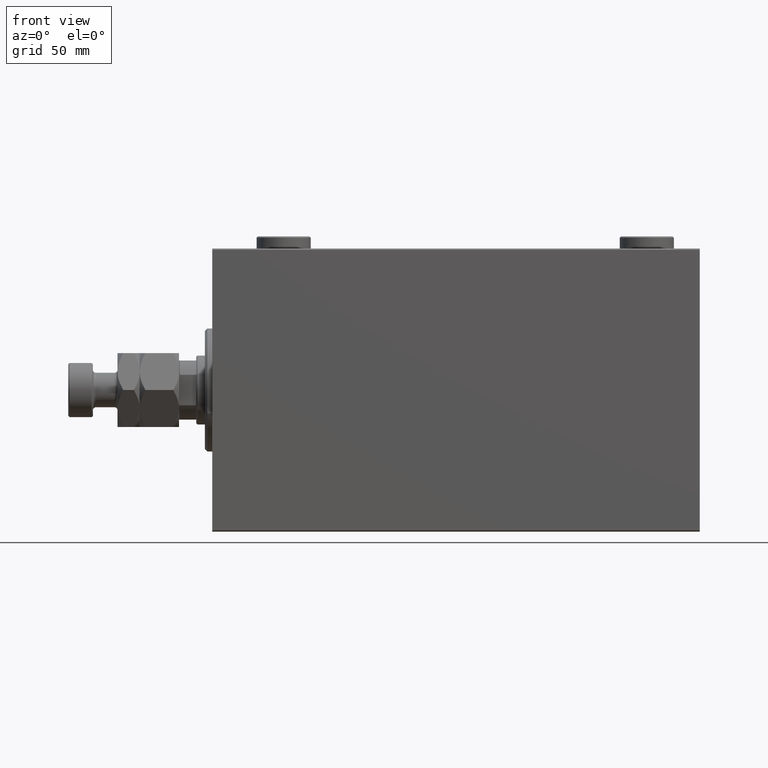
[diagram: clean part render]
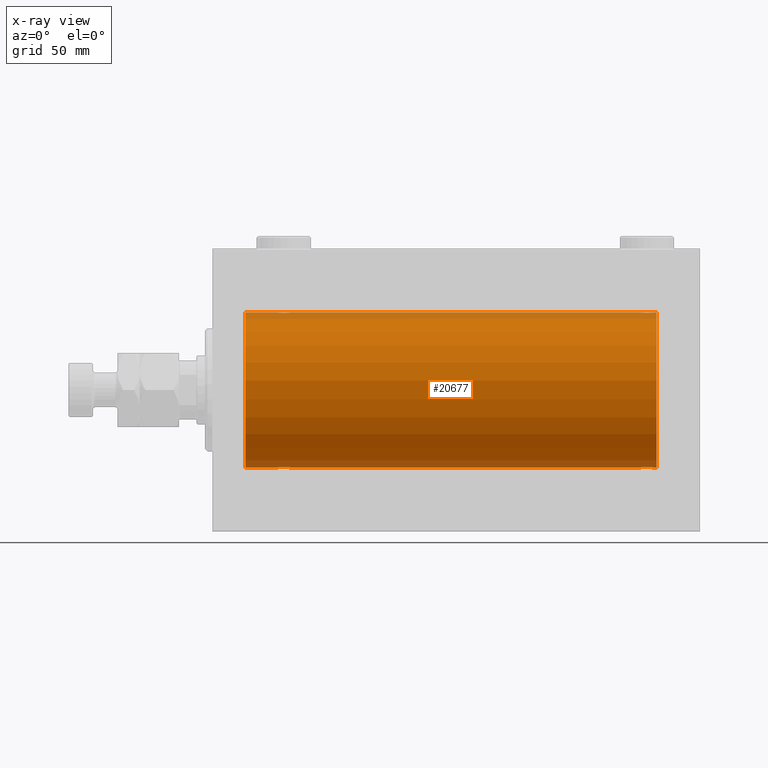
[diagram: x-ray — body ghosted, one internal face saturated and labeled with its STEP entity id]
A machine part, front view, then the same camera in x-ray: the body is ghosted and one INTERNAL B-rep face — a face not visible from any outside direction — is saturated and labeled: STEP entity #20677.
In plain terms, the highlighted cylindrical surface (partial cylindrical patch) has radius 31.5 mm, axis along (-1, -0, -0).
Its self-contained STEP definition (entity closure, byte-faithful):
#339 = CARTESIAN_POINT ( 'NONE',  ( 173.5000000000000568, -0.1958045626907475856, 31.50000000000000000 ) ) ;
#662 = CARTESIAN_POINT ( 'NONE',  ( 173.5000000000000000, -2.045720367747829303E-14, -31.50000000000000000 ) ) ;
#862 = CARTESIAN_POINT ( 'NONE',  ( 28.60465888999904749, -2.980257240990054513, 31.35872356503797320 ) ) ;
#952 = AXIS2_PLACEMENT_3D ( 'NONE', #30980, #45726, #34297 ) ;
#1020 = CARTESIAN_POINT ( 'NONE',  ( 180.5000000000000000, 0.000000000000000000, 31.50000000000000000 ) ) ;
#1269 = CARTESIAN_POINT ( 'NONE',  ( 174.9954371499300407, -2.602826974226394086, 31.39247100434485560 ) ) ;
#1308 = LINE ( 'NONE', #19824, #4145 ) ;
#1743 = DIRECTION ( 'NONE',  ( 0.000000000000000000, 0.000000000000000000, 1.000000000000000000 ) ) ;
#1803 = CARTESIAN_POINT ( 'NONE',  ( 29.39114547339941552, -2.980809450819701834, 31.35867074198615967 ) ) ;
#2640 = CARTESIAN_POINT ( 'NONE',  ( 27.67134585312494011, -2.696917666262907520, -31.38442820068732786 ) ) ;
#2702 = VECTOR ( 'NONE', #39648, 1000.000000000000000 ) ;
#2802 = VERTEX_POINT ( 'NONE', #41108 ) ;
#3082 = CARTESIAN_POINT ( 'NONE',  ( 177.4694445565852732, -2.845838211243336691, -31.37127560316186603 ) ) ;
#3305 = CARTESIAN_POINT ( 'NONE',  ( 174.6729577462972998, -2.387531469909784931, -31.40957782495775419 ) ) ;
#3336 = CARTESIAN_POINT ( 'NONE',  ( 30.33239958099164824, -2.695056442718529954, -31.38458855656185875 ) ) ;
#3576 = CARTESIAN_POINT ( 'NONE',  ( 31.60417781274729165, -1.502389880412996259, -31.46458023642406587 ) ) ;
#3905 = CARTESIAN_POINT ( 'NONE',  ( 177.4651572981064476, -2.847307171789025926, 31.37114183851420179 ) ) ;
#4145 = VECTOR ( 'NONE', #9616, 1000.000000000000000 ) ;
#4243 = CARTESIAN_POINT ( 'NONE',  ( 26.00000000000000355, -2.117263226567934635E-23, 31.50000000000000000 ) ) ;
#4375 = CARTESIAN_POINT ( 'NONE',  ( 179.5000000000000000, 4.699731104275013306E-15, 31.50000000000000000 ) ) ;
#4603 = CARTESIAN_POINT ( 'NONE',  ( 175.7211808735768273, -2.903733559410683895, 31.36590199989304395 ) ) ;
#4830 = CARTESIAN_POINT ( 'NONE',  ( 176.8911454733994049, -2.980809450819698281, 31.35867074198615967 ) ) ;
#4881 = B_SPLINE_CURVE_WITH_KNOTS ( 'NONE', 3,
 ( #29602, #43895, #11314, #25329, #37192, #11537, #18909, #33407, #39841, #11772, #29821, #40305, #19131, #14425, #7756, #862, #44343, #7302, #1803, #33871, #31029, #15572, #41241, #37422, #37670, #5133, #34341, #45544, #19612, #34106, #5603, #23166 ),
 .UNSPECIFIED., .F., .F.,
 ( 4, 2, 2, 2, 2, 2, 2, 2, 2, 2, 2, 2, 2, 2, 2, 4 ),
 ( 0.009384682587134639611, 0.009971088165454038837, 0.01055749374377343980, 0.01114389932209284076, 0.01173030490041223999, 0.01231671047873163921, 0.01290311605705104017, 0.01348952163537044113, 0.01407592721368984036, 0.01466233279200923958, 0.01524873837032864055, 0.01583514394864804151, 0.01642154952696744247, 0.01700795510528683996, 0.01759436068360624092, 0.01876717184024503243 ),
 .UNSPECIFIED. ) ;
#5133 = CARTESIAN_POINT ( 'NONE',  ( 31.25824501903266039, -1.984587626072074285, 31.43772577203672469 ) ) ;
#5603 = CARTESIAN_POINT ( 'NONE',  ( 32.00000000000001421, -0.3965830985361748495, 31.50000000000001421 ) ) ;
#5781 = CARTESIAN_POINT ( 'NONE',  ( 180.5000000000000000, 0.000000000000000000, 0.000000000000000000 ) ) ;
#6102 = CARTESIAN_POINT ( 'NONE',  ( 180.5000000000000000, 3.857637417314162689E-15, -31.50000000000000000 ) ) ;
#6396 = CARTESIAN_POINT ( 'NONE',  ( 177.8323995809916767, -2.695056442718533951, -31.38458855656186230 ) ) ;
#6430 = CARTESIAN_POINT ( 'NONE',  ( 26.30470357640989576, -1.331741824817665343, -31.47235367475392920 ) ) ;
#6638 = CARTESIAN_POINT ( 'NONE',  ( 174.9990184370385293, -2.604888532024801417, -31.39229907792057972 ) ) ;
#6874 = CARTESIAN_POINT ( 'NONE',  ( 176.8953411100009419, -2.980257240990060730, -31.35872356503797320 ) ) ;
#6905 = CARTESIAN_POINT ( 'NONE',  ( 31.26095462456130747, -1.981494824113326114, -31.43792153503156683 ) ) ;
#7302 = CARTESIAN_POINT ( 'NONE',  ( 29.19582294439440417, -3.000152387858486147, 31.35680286115499626 ) ) ;
#7330 = CARTESIAN_POINT ( 'NONE',  ( 178.4846035992465829, -2.258226318633799412, -31.41925597582826413 ) ) ;
#7509 = LINE ( 'NONE', #36466, #39357 ) ;
#7702 = CARTESIAN_POINT ( 'NONE',  ( 177.2746909443437175, -2.904836261170101519, 31.36579955910872286 ) ) ;
#7756 = CARTESIAN_POINT ( 'NONE',  ( 28.22118087357680238, -2.903733559410683895, 31.36590199989303684 ) ) ;
#7930 = CARTESIAN_POINT ( 'NONE',  ( 176.6958229443943935, -3.000152387858483927, 31.35680286115499626 ) ) ;
#8049 = ORIENTED_EDGE ( 'NONE', *, *, #29781, .T. ) ;
#8529 = EDGE_CURVE ( 'NONE', #28769, #45951, #31562, .T. ) ;
#8873 = CYLINDRICAL_SURFACE ( 'NONE', #16352, 31.50000000000000000 ) ;
#9616 = DIRECTION ( 'NONE',  ( -1.000000000000000000, -0.000000000000000000, -0.000000000000000000 ) ) ;
#9752 = CARTESIAN_POINT ( 'NONE',  ( 31.90419450738055218, -0.7775502215293819130, -31.49099686045559565 ) ) ;
#9847 = B_SPLINE_CURVE_WITH_KNOTS ( 'NONE', 3,
 ( #40476, #339, #44528, #23101, #40952, #19074, #15283, #25739, #33117, #15061, #29764, #1269, #15755, #29547, #4603, #18855, #11480, #7930, #4830, #7702, #3905, #11256, #44283, #19303, #30242, #44761, #22166, #22404, #11712, #36905, #18382, #4375 ),
 .UNSPECIFIED., .F., .F.,
 ( 4, 2, 2, 2, 2, 2, 2, 2, 2, 2, 2, 2, 2, 2, 2, 4 ),
 ( 0.009384682587134643081, 0.009971088165454042307, 0.01055749374377344327, 0.01114389932209284423, 0.01173030490041224345, 0.01231671047873164268, 0.01290311605705104364, 0.01348952163537044460, 0.01407592721368984383, 0.01466233279200924305, 0.01524873837032864402, 0.01583514394864804498, 0.01642154952696744594, 0.01700795510528684690, 0.01759436068360624439, 0.01876717184024504284 ),
 .UNSPECIFIED. ) ;
#9959 = LINE ( 'NONE', #24437, #2702 ) ;
#9983 = CARTESIAN_POINT ( 'NONE',  ( 32.00000000000000000, 3.857637396137448068E-15, -31.50000000000000000 ) ) ;
#10684 = CARTESIAN_POINT ( 'NONE',  ( 29.96944455658523054, -2.845838211243329585, -31.37127560316186603 ) ) ;
#10755 = EDGE_CURVE ( 'NONE', #26371, #16400, #21439, .T. ) ;
#11253 = ORIENTED_EDGE ( 'NONE', *, *, #44773, .T. ) ;
#11256 = CARTESIAN_POINT ( 'NONE',  ( 177.8286541468750670, -2.696917666262893309, 31.38442820068731365 ) ) ;
#11280 = VERTEX_POINT ( 'NONE', #32681 ) ;
#11314 = CARTESIAN_POINT ( 'NONE',  ( 26.01898490608483527, -0.3904857149112033743, 31.49817436802766935 ) ) ;
#11480 = CARTESIAN_POINT ( 'NONE',  ( 176.2995354102590113, -2.999845816735293713, 31.35683219171744796 ) ) ;
#11537 = CARTESIAN_POINT ( 'NONE',  ( 26.30285761163300151, -1.328004386210305698, 31.47251238182140298 ) ) ;
#11712 = CARTESIAN_POINT ( 'NONE',  ( 179.1952964235900652, -1.331741824817656683, 31.47235367475393630 ) ) ;
#11772 = CARTESIAN_POINT ( 'NONE',  ( 27.01539640075335669, -2.258226318633785201, 31.41925597582825702 ) ) ;
#13312 = CARTESIAN_POINT ( 'NONE',  ( 28.80417705560560648, -3.000152387858484371, -31.35680286115500337 ) ) ;
#13521 = CARTESIAN_POINT ( 'NONE',  ( 176.7004645897410171, -2.999845816735304815, -31.35683219171744796 ) ) ;
#13555 = CARTESIAN_POINT ( 'NONE',  ( 27.01856537126958813, -2.261012035264781783, -31.41905495618428645 ) ) ;
#13753 = CARTESIAN_POINT ( 'NONE',  ( 175.7253090556562540, -2.904836261170120171, -31.36579955910872286 ) ) ;
#13989 = CARTESIAN_POINT ( 'NONE',  ( 174.2417549809673005, -1.984587626072083388, -31.43772577203671048 ) ) ;
#14425 = CARTESIAN_POINT ( 'NONE',  ( 28.03055544341478722, -2.845838211243333138, 31.37127560316186603 ) ) ;
#14905 = ORIENTED_EDGE ( 'NONE', *, *, #20474, .F. ) ;
#15061 = CARTESIAN_POINT ( 'NONE',  ( 174.5153964007533602, -2.258226318633788754, 31.41925597582826413 ) ) ;
#15065 = LINE ( 'NONE', #35757, #27333 ) ;
#15283 = CARTESIAN_POINT ( 'NONE',  ( 173.8958221872526906, -1.502389880412993595, 31.46458023642405877 ) ) ;
#15572 = CARTESIAN_POINT ( 'NONE',  ( 30.32865414687508832, -2.696917666262907520, 31.38442820068731365 ) ) ;
#15609 = ORIENTED_EDGE ( 'NONE', *, *, #46080, .F. ) ;
#15755 = CARTESIAN_POINT ( 'NONE',  ( 175.1676004190082949, -2.695056442718522849, 31.38458855656185165 ) ) ;
#16276 = CARTESIAN_POINT ( 'NONE',  ( 179.5000000000000000, 3.857637396132714903E-15, -31.50000000000000000 ) ) ;
#16352 = AXIS2_PLACEMENT_3D ( 'NONE', #5781, #23344, #1743 ) ;
#16400 = VERTEX_POINT ( 'NONE', #23576 ) ;
#16601 = CARTESIAN_POINT ( 'NONE',  ( 173.5000000000000000, -2.118130973563677748E-23, 31.50000000000000000 ) ) ;
#16828 = CARTESIAN_POINT ( 'NONE',  ( 180.5000000000000000, 3.857637417314162689E-15, -31.50000000000000000 ) ) ;
#16979 = VERTEX_POINT ( 'NONE', #4243 ) ;
#17688 = DIRECTION ( 'NONE',  ( -1.000000000000000000, 0.000000000000000000, 0.000000000000000000 ) ) ;
#18113 = EDGE_CURVE ( 'NONE', #16979, #2802, #4881, .T. ) ;
#18150 = B_SPLINE_CURVE_WITH_KNOTS ( 'NONE', 3,
 ( #21116, #47033, #25360, #32049, #28934, #46560, #39873, #31582, #39175, #7330, #24431, #46098, #6396, #3082, #20878, #6874, #13521, #43227, #28003, #13753, #28230, #42747, #6638, #3305, #21344, #13989, #42992, #35833, #32284, #25135, #39642, #662 ),
 .UNSPECIFIED., .F., .F.,
 ( 4, 2, 2, 2, 2, 2, 2, 2, 2, 2, 2, 2, 2, 2, 2, 4 ),
 ( 0.009384682587134632673, 0.009971088165454031899, 0.01055749374377343112, 0.01114389932209283035, 0.01173030490041223131, 0.01231671047873163054, 0.01290311605705102976, 0.01348952163537043072, 0.01407592721368982822, 0.01466233279200922918, 0.01524873837032862840, 0.01583514394864802763, 0.01642154952696742512, 0.01700795510528682608, 0.01759436068360622357, 0.01876717184024502549 ),
 .UNSPECIFIED. ) ;
#18382 = CARTESIAN_POINT ( 'NONE',  ( 179.5000000000000000, -0.3965830985361761263, 31.50000000000000000 ) ) ;
#18519 = EDGE_CURVE ( 'NONE', #16979, #16400, #1308, .T. ) ;
#18855 = CARTESIAN_POINT ( 'NONE',  ( 176.1046588899990297, -2.980257240990053624, 31.35872356503797320 ) ) ;
#18909 = CARTESIAN_POINT ( 'NONE',  ( 26.39582218725271900, -1.502389880413001144, 31.46458023642405166 ) ) ;
#19074 = CARTESIAN_POINT ( 'NONE',  ( 173.8028576116330726, -1.328004386210311472, 31.47251238182141719 ) ) ;
#19131 = CARTESIAN_POINT ( 'NONE',  ( 27.66760041900836953, -2.695056442718533507, 31.38458855656185875 ) ) ;
#19303 = CARTESIAN_POINT ( 'NONE',  ( 178.3270422537026718, -2.387531469909772941, 31.40957782495776840 ) ) ;
#19612 = CARTESIAN_POINT ( 'NONE',  ( 31.69529642359010424, -1.331741824817659348, 31.47235367475393630 ) ) ;
#19824 = CARTESIAN_POINT ( 'NONE',  ( 180.5000000000000000, 0.000000000000000000, 31.50000000000000000 ) ) ;
#20138 = VECTOR ( 'NONE', #44280, 1000.000000000000000 ) ;
#20264 = FACE_OUTER_BOUND ( 'NONE', #24991, .T. ) ;
#20474 = EDGE_CURVE ( 'NONE', #28769, #11280, #25392, .T. ) ;
#20547 = EDGE_CURVE ( 'NONE', #27535, #22372, #9847, .T. ) ;
#20667 = CARTESIAN_POINT ( 'NONE',  ( 28.22530905565627179, -2.904836261170103739, -31.36579955910872286 ) ) ;
#20677 = ADVANCED_FACE ( 'NONE', ( #20264 ), #8873, .F. ) ;
#20878 = CARTESIAN_POINT ( 'NONE',  ( 177.2788191264232012, -2.903733559410687004, -31.36590199989303684 ) ) ;
#20911 = CARTESIAN_POINT ( 'NONE',  ( 26.07979337049960478, -0.7905881588836203289, -31.49214662150069088 ) ) ;
#21010 = EDGE_CURVE ( 'NONE', #21600, #23703, #27983, .T. ) ;
#21116 = CARTESIAN_POINT ( 'NONE',  ( 179.5000000000000000, 3.857637396132714903E-15, -31.50000000000000000 ) ) ;
#21147 = CARTESIAN_POINT ( 'NONE',  ( 30.50456285006998769, -2.602826974226392309, -31.39247100434485560 ) ) ;
#21149 = ORIENTED_EDGE ( 'NONE', *, *, #37435, .F. ) ;
#21344 = CARTESIAN_POINT ( 'NONE',  ( 174.5185653712695455, -2.261012035264789777, -31.41905495618427224 ) ) ;
#21374 = CARTESIAN_POINT ( 'NONE',  ( 32.00000000000001421, -0.1958045626907418957, -31.50000000000000711 ) ) ;
#21439 = CIRCLE ( 'NONE', #952, 31.50000000000000000 ) ;
#21600 = VERTEX_POINT ( 'NONE', #40669 ) ;
#22166 = CARTESIAN_POINT ( 'NONE',  ( 178.8824687226663173, -1.833765390051030009, 31.44700610425690712 ) ) ;
#22372 = VERTEX_POINT ( 'NONE', #22828 ) ;
#22404 = CARTESIAN_POINT ( 'NONE',  ( 179.1019214043915326, -1.506272792558311702, 31.46439306106696421 ) ) ;
#22828 = CARTESIAN_POINT ( 'NONE',  ( 179.5000000000000000, 4.699731104275013306E-15, 31.50000000000000000 ) ) ;
#23101 = CARTESIAN_POINT ( 'NONE',  ( 173.5958054926194336, -0.7775502215293850217, 31.49099686045560276 ) ) ;
#23166 = CARTESIAN_POINT ( 'NONE',  ( 32.00000000000000000, -3.906065418435112189E-16, 31.50000000000000000 ) ) ;
#23344 = DIRECTION ( 'NONE',  ( -1.000000000000000000, -0.000000000000000000, -0.000000000000000000 ) ) ;
#23576 = CARTESIAN_POINT ( 'NONE',  ( 13.50000000000001243, 0.000000000000000000, 31.50000000000000000 ) ) ;
#23678 = ORIENTED_EDGE ( 'NONE', *, *, #18113, .T. ) ;
#23703 = VERTEX_POINT ( 'NONE', #27600 ) ;
#24234 = CARTESIAN_POINT ( 'NONE',  ( 30.83043691487002746, -2.384935707362433988, -31.40977595730572958 ) ) ;
#24431 = CARTESIAN_POINT ( 'NONE',  ( 178.3304369148700061, -2.384935707362425550, -31.40977595730572247 ) ) ;
#24437 = CARTESIAN_POINT ( 'NONE',  ( 180.5000000000000000, 3.857637417314162689E-15, -31.50000000000000000 ) ) ;
#24462 = CARTESIAN_POINT ( 'NONE',  ( 31.84660463742499559, -0.9669616078781945179, -31.48567319468626735 ) ) ;
#24941 = CARTESIAN_POINT ( 'NONE',  ( 31.69714238836700915, -1.328004386210301480, -31.47251238182141009 ) ) ;
#24991 = EDGE_LOOP ( 'NONE', ( #14905, #44047, #34095, #8049, #39864, #11253, #25050, #28847, #23678, #15609, #38953, #21149 ) ) ;
#25050 = ORIENTED_EDGE ( 'NONE', *, *, #10755, .T. ) ;
#25135 = CARTESIAN_POINT ( 'NONE',  ( 173.5797933704995728, -0.7905881588836281004, -31.49214662150069088 ) ) ;
#25329 = CARTESIAN_POINT ( 'NONE',  ( 26.09580549261944427, -0.7775502215293862429, 31.49099686045558144 ) ) ;
#25360 = CARTESIAN_POINT ( 'NONE',  ( 179.4810150939152038, -0.3904857149112007653, -31.49817436802767290 ) ) ;
#25392 = CIRCLE ( 'NONE', #37529, 31.50000000000000000 ) ;
#25542 = DIRECTION ( 'NONE',  ( -1.000000000000000000, -0.000000000000000000, -0.000000000000000000 ) ) ;
#25735 = LINE ( 'NONE', #1020, #20138 ) ;
#25739 = CARTESIAN_POINT ( 'NONE',  ( 174.1149855772306978, -1.830470878313871008, 31.44719957596828763 ) ) ;
#26371 = VERTEX_POINT ( 'NONE', #42744 ) ;
#27333 = VECTOR ( 'NONE', #36214, 1000.000000000000000 ) ;
#27535 = VERTEX_POINT ( 'NONE', #16601 ) ;
#27600 = CARTESIAN_POINT ( 'NONE',  ( 26.00000000000000355, -6.595038141055444136E-15, -31.50000000000000000 ) ) ;
#27983 = B_SPLINE_CURVE_WITH_KNOTS ( 'NONE', 3,
 ( #9983, #21374, #31617, #9752, #24462, #24941, #3576, #31374, #6905, #31852, #24234, #21147, #3336, #10684, #46835, #42780, #32078, #13312, #38966, #20667, #35164, #2640, #46363, #46590, #13555, #43258, #46129, #42550, #6430, #20911, #28262, #35406 ),
 .UNSPECIFIED., .F., .F.,
 ( 4, 2, 2, 2, 2, 2, 2, 2, 2, 2, 2, 2, 2, 2, 2, 4 ),
 ( 0.009384682587134662163, 0.009971088165454068328, 0.01055749374377347449, 0.01114389932209288066, 0.01173030490041228682, 0.01231671047873168605, 0.01290311605705108527, 0.01348952163537048277, 0.01407592721368988199, 0.01466233279200928122, 0.01524873837032868044, 0.01583514394864807967, 0.01642154952696747716, 0.01700795510528687812, 0.01759436068360627908, 0.01876717184024507407 ),
 .UNSPECIFIED. ) ;
#28003 = CARTESIAN_POINT ( 'NONE',  ( 176.1088545266005951, -2.980809450819712936, -31.35867074198615967 ) ) ;
#28230 = CARTESIAN_POINT ( 'NONE',  ( 175.5348427018936093, -2.847307171789046354, -31.37114183851420179 ) ) ;
#28262 = CARTESIAN_POINT ( 'NONE',  ( 26.00000000000000355, -0.3965830985361813443, -31.50000000000000711 ) ) ;
#28769 = VERTEX_POINT ( 'NONE', #6102 ) ;
#28847 = ORIENTED_EDGE ( 'NONE', *, *, #18519, .F. ) ;
#28934 = CARTESIAN_POINT ( 'NONE',  ( 179.3466046374250311, -0.9669616078781947399, -31.48567319468627446 ) ) ;
#29547 = CARTESIAN_POINT ( 'NONE',  ( 175.5305554434147837, -2.845838211243326032, 31.37127560316188024 ) ) ;
#29602 = CARTESIAN_POINT ( 'NONE',  ( 26.00000000000000355, -2.117263226567934635E-23, 31.50000000000000000 ) ) ;
#29764 = CARTESIAN_POINT ( 'NONE',  ( 174.6695630851299654, -2.384935707362434876, 31.40977595730572958 ) ) ;
#29781 = EDGE_CURVE ( 'NONE', #45225, #21600, #7509, .T. ) ;
#29821 = CARTESIAN_POINT ( 'NONE',  ( 27.16956308512997964, -2.384935707362437096, 31.40977595730572958 ) ) ;
#30242 = CARTESIAN_POINT ( 'NONE',  ( 178.4814346287303977, -2.261012035264779119, 31.41905495618428645 ) ) ;
#30980 = CARTESIAN_POINT ( 'NONE',  ( 13.50000000000001243, 0.000000000000000000, 0.000000000000000000 ) ) ;
#31029 = CARTESIAN_POINT ( 'NONE',  ( 29.96515729810641204, -2.847307171789037028, 31.37114183851420890 ) ) ;
#31374 = CARTESIAN_POINT ( 'NONE',  ( 31.38501442276926667, -1.830470878313872563, -31.44719957596828763 ) ) ;
#31562 = LINE ( 'NONE', #16828, #38133 ) ;
#31582 = CARTESIAN_POINT ( 'NONE',  ( 178.8850144227693306, -1.830470878313878336, -31.44719957596828763 ) ) ;
#31617 = CARTESIAN_POINT ( 'NONE',  ( 31.98101509391517538, -0.3904857149111993775, -31.49817436802766224 ) ) ;
#31852 = CARTESIAN_POINT ( 'NONE',  ( 30.98460359924664687, -2.258226318633781649, -31.41925597582825702 ) ) ;
#32049 = CARTESIAN_POINT ( 'NONE',  ( 179.4041945073805664, -0.7775502215293820241, -31.49099686045560276 ) ) ;
#32078 = CARTESIAN_POINT ( 'NONE',  ( 29.20046458974095671, -2.999845816735294157, -31.35683219171744085 ) ) ;
#32284 = CARTESIAN_POINT ( 'NONE',  ( 173.8047035764099633, -1.331741824817675335, -31.47235367475394341 ) ) ;
#32433 = DIRECTION ( 'NONE',  ( 0.000000000000000000, 0.000000000000000000, 1.000000000000000000 ) ) ;
#32681 = CARTESIAN_POINT ( 'NONE',  ( 180.5000000000000000, 0.000000000000000000, 31.50000000000000000 ) ) ;
#33117 = CARTESIAN_POINT ( 'NONE',  ( 174.2390453754387352, -1.981494824113333442, 31.43792153503156683 ) ) ;
#33407 = CARTESIAN_POINT ( 'NONE',  ( 26.61498557723073333, -1.830470878313877892, 31.44719957596828053 ) ) ;
#33871 = CARTESIAN_POINT ( 'NONE',  ( 29.77469094434372821, -2.904836261170106404, 31.36579955910873707 ) ) ;
#34095 = ORIENTED_EDGE ( 'NONE', *, *, #44013, .T. ) ;
#34106 = CARTESIAN_POINT ( 'NONE',  ( 31.92020662950040943, -0.7905881588836116691, 31.49214662150068378 ) ) ;
#34297 = DIRECTION ( 'NONE',  ( 0.000000000000000000, 0.000000000000000000, 1.000000000000000000 ) ) ;
#34341 = CARTESIAN_POINT ( 'NONE',  ( 31.38246872266631371, -1.833765390051040223, 31.44700610425690712 ) ) ;
#35164 = CARTESIAN_POINT ( 'NONE',  ( 28.03484270189360217, -2.847307171789034808, -31.37114183851420179 ) ) ;
#35406 = CARTESIAN_POINT ( 'NONE',  ( 26.00000000000000355, -6.595038141055444136E-15, -31.50000000000000000 ) ) ;
#35755 = CARTESIAN_POINT ( 'NONE',  ( 180.5000000000000000, 0.000000000000000000, 0.000000000000000000 ) ) ;
#35757 = CARTESIAN_POINT ( 'NONE',  ( 180.5000000000000000, 0.000000000000000000, 31.50000000000000000 ) ) ;
#35833 = CARTESIAN_POINT ( 'NONE',  ( 173.8980785956084105, -1.506272792558325468, -31.46439306106695710 ) ) ;
#36214 = DIRECTION ( 'NONE',  ( -1.000000000000000000, -0.000000000000000000, -0.000000000000000000 ) ) ;
#36466 = CARTESIAN_POINT ( 'NONE',  ( 180.5000000000000000, 3.857637417314162689E-15, -31.50000000000000000 ) ) ;
#36905 = CARTESIAN_POINT ( 'NONE',  ( 179.4202066295003988, -0.7905881588836107809, 31.49214662150069088 ) ) ;
#37192 = CARTESIAN_POINT ( 'NONE',  ( 26.15339536257501507, -0.9669616078781987367, 31.48567319468626735 ) ) ;
#37422 = CARTESIAN_POINT ( 'NONE',  ( 30.82704225370267892, -2.387531469909770276, 31.40957782495776129 ) ) ;
#37435 = EDGE_CURVE ( 'NONE', #11280, #22372, #15065, .T. ) ;
#37529 = AXIS2_PLACEMENT_3D ( 'NONE', #35755, #17688, #32433 ) ;
#37670 = CARTESIAN_POINT ( 'NONE',  ( 30.98143462873041898, -2.261012035264782227, 31.41905495618429356 ) ) ;
#38133 = VECTOR ( 'NONE', #45373, 1000.000000000000000 ) ;
#38953 = ORIENTED_EDGE ( 'NONE', *, *, #20547, .T. ) ;
#38966 = CARTESIAN_POINT ( 'NONE',  ( 28.60885452660059869, -2.980809450819698725, -31.35867074198615256 ) ) ;
#39175 = CARTESIAN_POINT ( 'NONE',  ( 178.7609546245613217, -1.981494824113344322, -31.43792153503157394 ) ) ;
#39357 = VECTOR ( 'NONE', #25542, 1000.000000000000000 ) ;
#39642 = CARTESIAN_POINT ( 'NONE',  ( 173.5000000000000284, -0.3965830985361946115, -31.50000000000000711 ) ) ;
#39648 = DIRECTION ( 'NONE',  ( -1.000000000000000000, -0.000000000000000000, -0.000000000000000000 ) ) ;
#39841 = CARTESIAN_POINT ( 'NONE',  ( 26.73904537543869608, -1.981494824113328779, 31.43792153503155973 ) ) ;
#39864 = ORIENTED_EDGE ( 'NONE', *, *, #21010, .T. ) ;
#39873 = CARTESIAN_POINT ( 'NONE',  ( 179.1041778127473094, -1.502389880412999146, -31.46458023642405877 ) ) ;
#40305 = CARTESIAN_POINT ( 'NONE',  ( 27.49543714993000876, -2.602826974226395862, 31.39247100434485560 ) ) ;
#40476 = CARTESIAN_POINT ( 'NONE',  ( 173.5000000000000000, -2.118130973563677748E-23, 31.50000000000000000 ) ) ;
#40669 = CARTESIAN_POINT ( 'NONE',  ( 32.00000000000000000, 3.857637396137448068E-15, -31.50000000000000000 ) ) ;
#40952 = CARTESIAN_POINT ( 'NONE',  ( 173.6533953625750257, -0.9669616078782046209, 31.48567319468627801 ) ) ;
#41108 = CARTESIAN_POINT ( 'NONE',  ( 32.00000000000000000, -3.906065418435112189E-16, 31.50000000000000000 ) ) ;
#41241 = CARTESIAN_POINT ( 'NONE',  ( 30.50098156296146712, -2.604888532024788983, 31.39229907792058683 ) ) ;
#42471 = CARTESIAN_POINT ( 'NONE',  ( 173.5000000000000000, -2.045720367747829303E-14, -31.50000000000000000 ) ) ;
#42550 = CARTESIAN_POINT ( 'NONE',  ( 26.39807859560848158, -1.506272792558332130, -31.46439306106697131 ) ) ;
#42744 = CARTESIAN_POINT ( 'NONE',  ( 13.50000000000001243, 3.857637417314162689E-15, -31.50000000000000000 ) ) ;
#42747 = CARTESIAN_POINT ( 'NONE',  ( 175.1713458531248762, -2.696917666262917290, -31.38442820068731365 ) ) ;
#42780 = CARTESIAN_POINT ( 'NONE',  ( 29.39534111000094541, -2.980257240990050960, -31.35872356503797320 ) ) ;
#42992 = CARTESIAN_POINT ( 'NONE',  ( 174.1175312773337112, -1.833765390051043553, -31.44700610425689291 ) ) ;
#43227 = CARTESIAN_POINT ( 'NONE',  ( 176.3041770556055781, -3.000152387858495029, -31.35680286115499626 ) ) ;
#43258 = CARTESIAN_POINT ( 'NONE',  ( 26.74175498096735026, -1.984587626072075617, -31.43772577203673180 ) ) ;
#43895 = CARTESIAN_POINT ( 'NONE',  ( 26.00000000000001066, -0.1958045626907463088, 31.50000000000000711 ) ) ;
#44013 = EDGE_CURVE ( 'NONE', #45951, #45225, #18150, .T. ) ;
#44047 = ORIENTED_EDGE ( 'NONE', *, *, #8529, .T. ) ;
#44280 = DIRECTION ( 'NONE',  ( -1.000000000000000000, -0.000000000000000000, -0.000000000000000000 ) ) ;
#44283 = CARTESIAN_POINT ( 'NONE',  ( 178.0009815629614707, -2.604888532024791203, 31.39229907792058683 ) ) ;
#44343 = CARTESIAN_POINT ( 'NONE',  ( 28.79953541025904684, -2.999845816735297266, 31.35683219171744796 ) ) ;
#44528 = CARTESIAN_POINT ( 'NONE',  ( 173.5189849060847678, -0.3904857149112037629, 31.49817436802766935 ) ) ;
#44761 = CARTESIAN_POINT ( 'NONE',  ( 178.7582450190326142, -1.984587626072069844, 31.43772577203671759 ) ) ;
#44773 = EDGE_CURVE ( 'NONE', #23703, #26371, #9959, .T. ) ;
#45225 = VERTEX_POINT ( 'NONE', #42471 ) ;
#45373 = DIRECTION ( 'NONE',  ( -1.000000000000000000, -0.000000000000000000, -0.000000000000000000 ) ) ;
#45544 = CARTESIAN_POINT ( 'NONE',  ( 31.60192140439154684, -1.506272792558323470, 31.46439306106697131 ) ) ;
#45726 = DIRECTION ( 'NONE',  ( -1.000000000000000000, 0.000000000000000000, 0.000000000000000000 ) ) ;
#45951 = VERTEX_POINT ( 'NONE', #16276 ) ;
#46080 = EDGE_CURVE ( 'NONE', #27535, #2802, #25735, .T. ) ;
#46098 = CARTESIAN_POINT ( 'NONE',  ( 178.0045628500701014, -2.602826974226389645, -31.39247100434486271 ) ) ;
#46129 = CARTESIAN_POINT ( 'NONE',  ( 26.61753127733371116, -1.833765390051047106, -31.44700610425690002 ) ) ;
#46363 = CARTESIAN_POINT ( 'NONE',  ( 27.49901843703856130, -2.604888532024793424, -31.39229907792058683 ) ) ;
#46560 = CARTESIAN_POINT ( 'NONE',  ( 179.1971423883670127, -1.328004386210302368, -31.47251238182141719 ) ) ;
#46590 = CARTESIAN_POINT ( 'NONE',  ( 27.17295774629732819, -2.387531469909775605, -31.40957782495775419 ) ) ;
#46835 = CARTESIAN_POINT ( 'NONE',  ( 29.77881912642320827, -2.903733559410679455, -31.36590199989303684 ) ) ;
#47033 = CARTESIAN_POINT ( 'NONE',  ( 179.5000000000000568, -0.1958045626907440329, -31.50000000000000000 ) ) ;